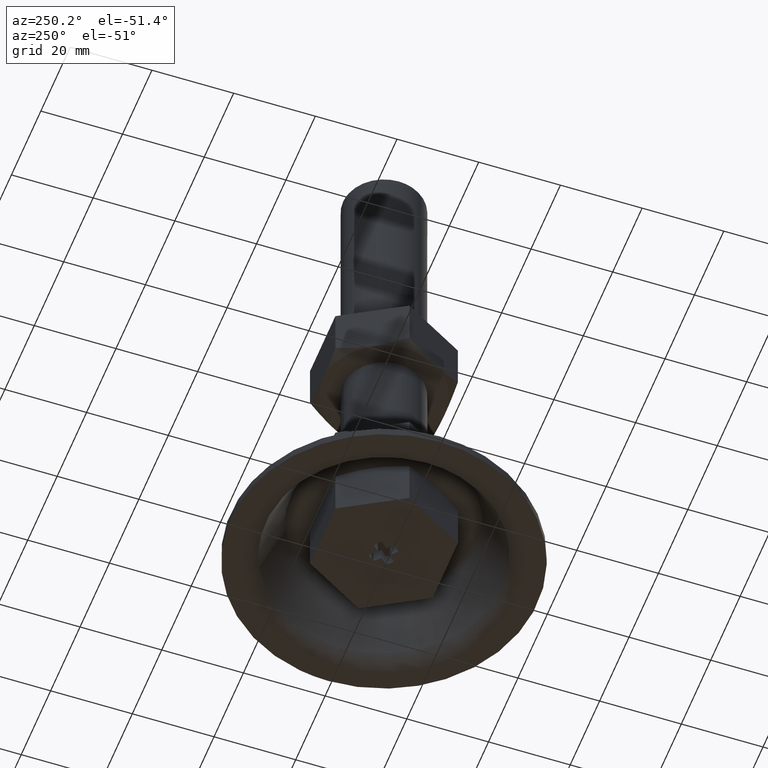
[diagram: clean part render]
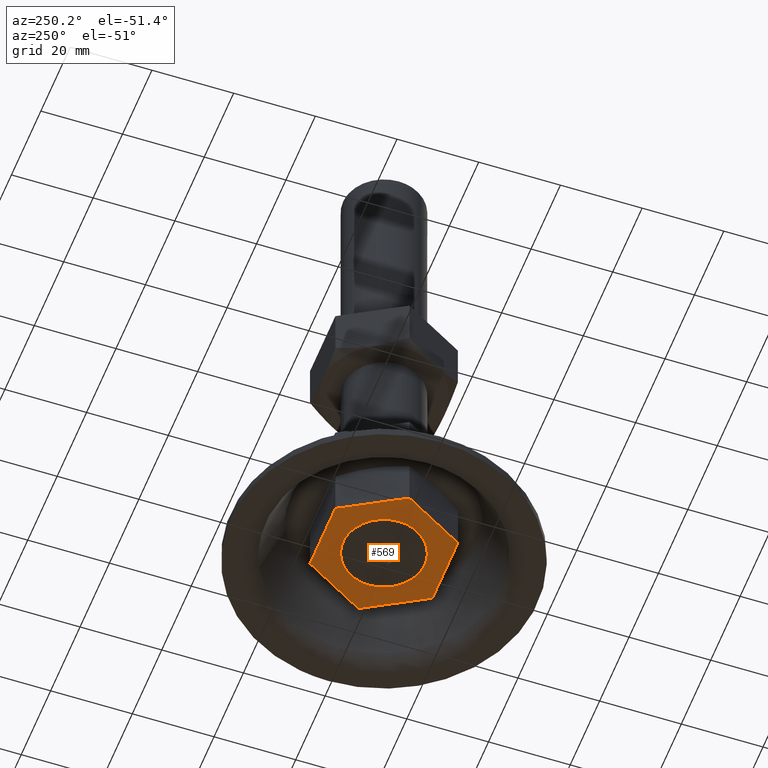
[diagram: same view with one face highlighted and labeled with its STEP entity id]
A machine part, auxiliary view. The second image highlights one B-rep face of the part: STEP entity #569.
In plain terms, the highlighted face is a freeform B-spline surface patch.
Its self-contained STEP definition (entity closure, byte-faithful):
#346=CARTESIAN_POINT('',(-10.0,0.0,74.0));
#347=VERTEX_POINT('',#346);
#348=CARTESIAN_POINT('',(-0.784590957317471,-9.969173337328208,74.0));
#349=VERTEX_POINT('',#348);
#350=CARTESIAN_POINT('',(-10.0,0.0,74.0));
#351=CARTESIAN_POINT('',(-10.0,-9.243904916509484,74.0));
#352=CARTESIAN_POINT('',(-0.784590957317471,-9.969173337328208,74.0));
#360=(BOUNDED_CURVE()B_SPLINE_CURVE(2,(#350,#351,#352),.UNSPECIFIED.,.F.,.U.)B_SPLINE_CURVE_WITH_KNOTS((3,3),(0.0,0.236331300631425),.UNSPECIFIED.)CURVE()GEOMETRIC_REPRESENTATION_ITEM()RATIONAL_B_SPLINE_CURVE((1.0,0.723120658606769,0.969723356169015))REPRESENTATION_ITEM(''));
#361=EDGE_CURVE('',#347,#349,#360,.T.);
#402=CARTESIAN_POINT('',(0.784590957317473,9.969173337328208,74.0));
#403=VERTEX_POINT('',#402);
#409=CARTESIAN_POINT('',(0.784590957317473,9.969173337328208,74.0));
#410=CARTESIAN_POINT('',(0.392901070115898,10.000000000000002,74.0));
#411=CARTESIAN_POINT('',(0.0,10.0,74.0));
#412=CARTESIAN_POINT('',(-10.000000000000002,10.000000000000002,74.0));
#413=CARTESIAN_POINT('',(-10.0,0.0,74.0));
#421=(BOUNDED_CURVE()B_SPLINE_CURVE(2,(#409,#410,#411,#412,#413),.UNSPECIFIED.,.F.,.U.)B_SPLINE_CURVE_WITH_KNOTS((3,2,3),(0.736331300631425,0.750000000000000,1.0),.UNSPECIFIED.)CURVE()GEOMETRIC_REPRESENTATION_ITEM()RATIONAL_B_SPLINE_CURVE((0.969723356169015,0.983986122579779,1.0,0.707106781186548,1.0))REPRESENTATION_ITEM(''));
#422=EDGE_CURVE('',#403,#347,#421,.T.);
#449=CARTESIAN_POINT('',(10.0,0.0,74.0));
#450=VERTEX_POINT('',#449);
#451=CARTESIAN_POINT('',(-0.784590957317471,-9.969173337328208,74.0));
#452=CARTESIAN_POINT('',(-0.392901070115897,-10.0,74.0));
#453=CARTESIAN_POINT('',(0.0,-10.0,74.0));
#454=CARTESIAN_POINT('',(10.000000000000002,-10.000000000000002,74.0));
#455=CARTESIAN_POINT('',(10.0,0.0,74.0));
#463=(BOUNDED_CURVE()B_SPLINE_CURVE(2,(#451,#452,#453,#454,#455),.UNSPECIFIED.,.F.,.U.)B_SPLINE_CURVE_WITH_KNOTS((3,2,3),(0.236331300631425,0.250000000000000,0.500000000000000),.UNSPECIFIED.)CURVE()GEOMETRIC_REPRESENTATION_ITEM()RATIONAL_B_SPLINE_CURVE((0.969723356169015,0.983986122579779,1.0,0.707106781186548,1.0))REPRESENTATION_ITEM(''));
#464=EDGE_CURVE('',#349,#450,#463,.T.);
#466=CARTESIAN_POINT('',(10.0,0.0,74.0));
#467=CARTESIAN_POINT('',(10.0,9.243904916509482,74.0));
#468=CARTESIAN_POINT('',(0.784590957317473,9.969173337328208,74.0));
#476=(BOUNDED_CURVE()B_SPLINE_CURVE(2,(#466,#467,#468),.UNSPECIFIED.,.F.,.U.)B_SPLINE_CURVE_WITH_KNOTS((3,3),(0.500000000000000,0.736331300631425),.UNSPECIFIED.)CURVE()GEOMETRIC_REPRESENTATION_ITEM()RATIONAL_B_SPLINE_CURVE((1.0,0.723120658606769,0.969723356169015))REPRESENTATION_ITEM(''));
#477=EDGE_CURVE('',#450,#403,#476,.T.);
#514=CARTESIAN_POINT('',(-19.028269159722889,16.498499941854170,74.0));
#515=CARTESIAN_POINT('',(19.028268231678581,16.498499941854170,74.0));
#516=CARTESIAN_POINT('',(-19.028269159722889,-16.498500746516878,74.0));
#517=CARTESIAN_POINT('',(19.028268231678581,-16.498500746516878,74.0));
#518=B_SPLINE_SURFACE_WITH_KNOTS('',1,1,((#514,#516),(#515,#517)),.UNSPECIFIED.,.F.,.F.,.U.,(2,2),(2,2),(0.0,38.056537391401477),(0.0,32.997000688371060),.UNSPECIFIED.);
#519=CARTESIAN_POINT('',(-8.639746000000001,-15.0,74.0));
#520=VERTEX_POINT('',#519);
#521=CARTESIAN_POINT('',(-17.300000000000001,0.0,74.0));
#522=VERTEX_POINT('',#521);
#523=CARTESIAN_POINT('',(-8.639746000000001,-15.0,74.0));
#524=CARTESIAN_POINT('',(-17.300000000000001,0.0,74.0));
#525=QUASI_UNIFORM_CURVE('',1,(#523,#524),.UNSPECIFIED.,.F.,.U.);
#526=EDGE_CURVE('',#520,#522,#525,.T.);
#527=ORIENTED_EDGE('',*,*,#526,.F.);
#528=CARTESIAN_POINT('',(8.639746000000001,-15.0,74.0));
#529=VERTEX_POINT('',#528);
#530=CARTESIAN_POINT('',(8.639746000000001,-15.0,74.0));
#531=CARTESIAN_POINT('',(-8.639746000000001,-15.0,74.0));
#532=QUASI_UNIFORM_CURVE('',1,(#530,#531),.UNSPECIFIED.,.F.,.U.);
#533=EDGE_CURVE('',#529,#520,#532,.T.);
#534=ORIENTED_EDGE('',*,*,#533,.F.);
#535=CARTESIAN_POINT('',(17.300000000000001,0.0,74.0));
#536=VERTEX_POINT('',#535);
#537=CARTESIAN_POINT('',(17.300000000000001,0.0,74.0));
#538=CARTESIAN_POINT('',(8.639746000000001,-15.0,74.0));
#539=QUASI_UNIFORM_CURVE('',1,(#537,#538),.UNSPECIFIED.,.F.,.U.);
#540=EDGE_CURVE('',#536,#529,#539,.T.);
#541=ORIENTED_EDGE('',*,*,#540,.F.);
#542=CARTESIAN_POINT('',(8.639746000000001,15.0,74.0));
#543=VERTEX_POINT('',#542);
#544=CARTESIAN_POINT('',(8.639746000000001,15.0,74.0));
#545=CARTESIAN_POINT('',(17.300000000000001,0.0,74.0));
#546=QUASI_UNIFORM_CURVE('',1,(#544,#545),.UNSPECIFIED.,.F.,.U.);
#547=EDGE_CURVE('',#543,#536,#546,.T.);
#548=ORIENTED_EDGE('',*,*,#547,.F.);
#549=CARTESIAN_POINT('',(-8.639746000000001,15.0,74.0));
#550=VERTEX_POINT('',#549);
#551=CARTESIAN_POINT('',(-8.639746000000001,15.0,74.0));
#552=CARTESIAN_POINT('',(8.639746000000001,15.0,74.0));
#553=QUASI_UNIFORM_CURVE('',1,(#551,#552),.UNSPECIFIED.,.F.,.U.);
#554=EDGE_CURVE('',#550,#543,#553,.T.);
#555=ORIENTED_EDGE('',*,*,#554,.F.);
#556=CARTESIAN_POINT('',(-17.300000000000001,0.0,74.0));
#557=CARTESIAN_POINT('',(-8.639746000000001,15.0,74.0));
#558=QUASI_UNIFORM_CURVE('',1,(#556,#557),.UNSPECIFIED.,.F.,.U.);
#559=EDGE_CURVE('',#522,#550,#558,.T.);
#560=ORIENTED_EDGE('',*,*,#559,.F.);
#561=EDGE_LOOP('',(#527,#534,#541,#548,#555,#560));
#562=FACE_OUTER_BOUND('',#561,.T.);
#563=ORIENTED_EDGE('',*,*,#477,.F.);
#564=ORIENTED_EDGE('',*,*,#464,.F.);
#565=ORIENTED_EDGE('',*,*,#361,.F.);
#566=ORIENTED_EDGE('',*,*,#422,.F.);
#567=EDGE_LOOP('',(#563,#564,#565,#566));
#568=FACE_BOUND('',#567,.T.);
#569=ADVANCED_FACE('',(#562,#568),#518,.F.);